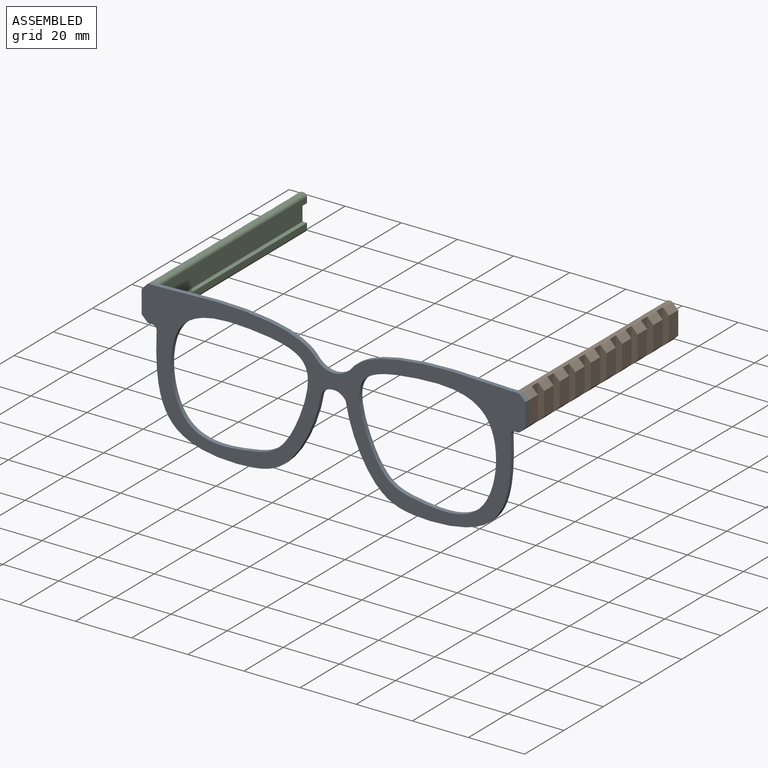
[diagram: assembled view]
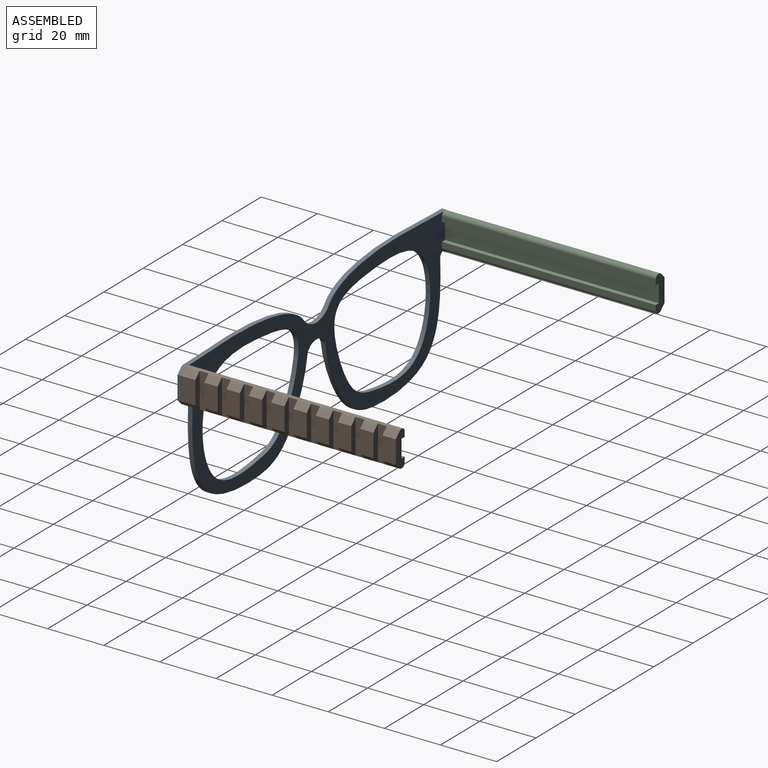
[diagram: assembled view, second angle]
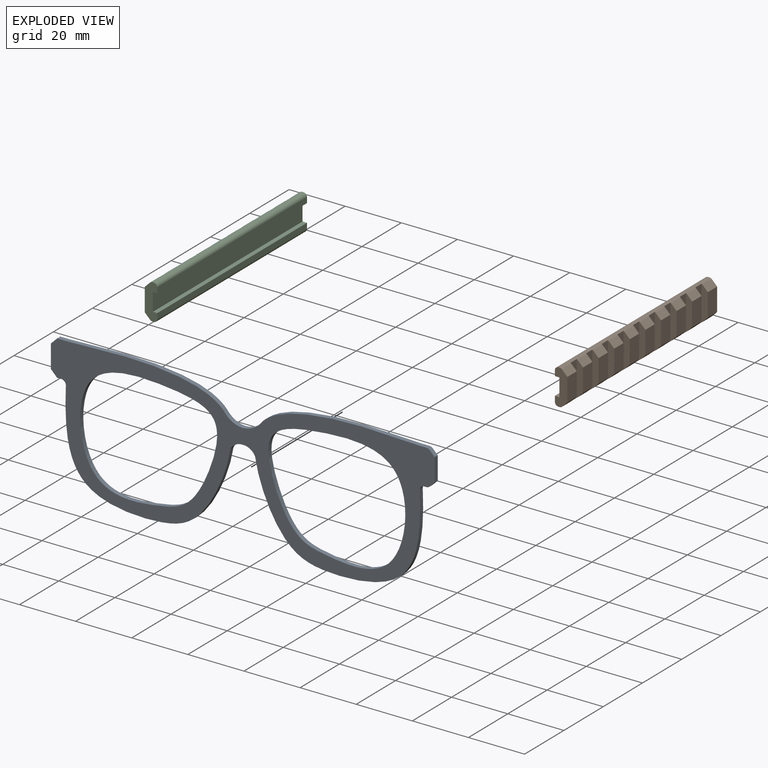
[diagram: exploded view]
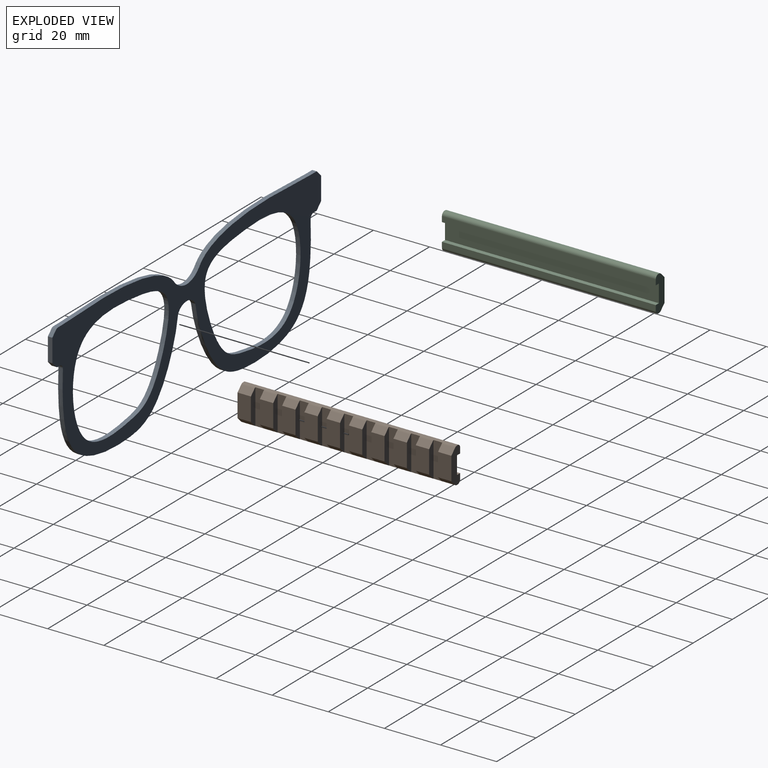
[diagram: exploded view, second angle]
ASSEMBLY  parts=3 mates=2
PART A: 26 faces, bbox 136.8x1.6x51.7 mm
  f0: extruded ~56.61x8.63mm, area 93.1mm2, adj f1,f19,f22,f23
  f1: cylinder r=8.41mm len=6.35mm, axis (0,1,0), area 11.6mm2, adj f0,f2,f22,f23
  f2: cylinder r=8.41mm len=6.35mm, axis (0,1,0), area 11.6mm2, adj f1,f3,f22,f23
  f3: extruded ~56.61x8.63mm, area 93.1mm2, adj f2,f4,f22,f23
  f4: plane 3.18x1.59mm, normal (0,0,1), area 5mm2, adj f3,f5,f22,f23
  f5: plane 2.25x2.25mm, normal (-0.71,0,0.71), area 5mm2, adj f4,f6,f22,f23
  f6: plane 8.21x1.59mm, normal (-1,0,0), area 13mm2, adj f5,f7,f22,f23
  f7: plane 2.25x2.25mm, normal (-0.71,0,-0.71), area 5mm2, adj f6,f8,f22,f23
  f8: plane 1.59x1.51mm, normal (0,0,-1), area 2.4mm2, adj f7,f9,f22,f23
  f9: cylinder r=1.59mm len=1.66mm, axis (0,1,0), area 4.1mm2, adj f8,f10,f22,f23
  f10: extruded ~58.79x35.21mm, area 161.5mm2, adj f9,f11,f22,f23
  f11: cylinder r=4.76mm len=4.38mm, axis (0,1,0), area 8.5mm2, adj f10,f12,f22,f23
  f12: cylinder r=4.76mm len=4.38mm, axis (0,1,0), area 8.5mm2, adj f11,f13,f22,f23
  f13: extruded ~58.79x35.21mm, area 161.5mm2, adj f12,f14,f22,f23
  f14: cylinder r=1.59mm len=1.66mm, axis (0,1,0), area 4.1mm2, adj f13,f15,f22,f23
  f15: plane 1.59x0.85mm, normal (0,0,-1), area 1.4mm2, adj f14,f22,f23,f24
  f16: plane 1.78x1.78mm, normal (0.71,0,-0.71), area 4mm2, adj f17,f22,f23,f24
  f17: plane 8.21x1.59mm, normal (1,0,0), area 13mm2, adj f16,f18,f22,f23
  f18: plane 1.78x1.78mm, normal (0.71,0,0.71), area 4mm2, adj f17,f22,f23,f25
  f19: plane 2.52x1.59mm, normal (0,0,1), area 4mm2, adj f0,f22,f23,f25
  f20: extruded ~48.77x40.48mm, area 232mm2, adj f22,f23
  f21: extruded ~48.77x40.48mm, area 232mm2, adj f22,f23
  f22: plane 136.76x51.71mm, normal (0,-1,0), area 1998.3mm2, adj f0,f1,f2,f3,f4,f5,f6,f7
  f23: plane 136.76x51.71mm, normal (0,1,0), area 1998.3mm2, adj f0,f1,f2,f3,f4,f5,f6,f7
  f24: cylinder r=1.59mm len=1.59mm, axis (0,1,0), area 2mm2, adj f15,f16,f22,f23
  f25: cylinder r=1.59mm len=1.59mm, axis (0,1,0), area 2mm2, adj f18,f19,f22,f23
PART B: 70 faces, bbox 4.5x76.2x12.7 mm
  f0: plane 4.76x1.87mm, normal (0.71,0,0.71), area 12.6mm2, adj f26,f29,f39,f69
  f1: plane 4.76x1.87mm, normal (0.71,0,0.71), area 12.6mm2, adj f25,f40,f42,f69
  f2: plane 4.76x1.87mm, normal (0.71,0,0.71), area 12.6mm2, adj f24,f43,f45,f69
  f3: plane 4.76x1.87mm, normal (0.71,0,0.71), area 12.6mm2, adj f23,f46,f48,f69
  f4: plane 4.76x1.87mm, normal (0.71,0,0.71), area 12.6mm2, adj f22,f49,f51,f69
  f5: plane 4.76x1.87mm, normal (0.71,0,0.71), area 12.6mm2, adj f21,f52,f54,f69
  f6: plane 4.76x1.87mm, normal (0.71,0,0.71), area 12.6mm2, adj f20,f55,f57,f69
  f7: plane 4.76x1.87mm, normal (0.71,0,0.71), area 12.6mm2, adj f19,f58,f60,f69
  f8: plane 4.76x1.87mm, normal (0.71,0,0.71), area 12.6mm2, adj f18,f61,f63,f69
  f9: plane 4.76x1.87mm, normal (0.71,0,-0.71), area 12.6mm2, adj f30,f32,f64,f68
  f10: plane 4.76x1.87mm, normal (0.71,0,-0.71), area 12.6mm2, adj f18,f61,f63,f68
  f11: plane 4.76x1.87mm, normal (0.71,0,-0.71), area 12.6mm2, adj f19,f58,f60,f68
  f12: plane 4.76x1.87mm, normal (0.71,0,-0.71), area 12.6mm2, adj f20,f55,f57,f68
  f13: plane 4.76x1.87mm, normal (0.71,0,-0.71), area 12.6mm2, adj f21,f52,f54,f68
  f14: plane 4.76x1.87mm, normal (0.71,0,-0.71), area 12.6mm2, adj f22,f49,f51,f68
  f15: plane 4.76x1.87mm, normal (0.71,0,-0.71), area 12.6mm2, adj f23,f46,f48,f68
  f16: plane 4.76x1.87mm, normal (0.71,0,-0.71), area 12.6mm2, adj f24,f43,f45,f68
  f17: plane 4.76x1.87mm, normal (0.71,0,-0.71), area 12.6mm2, adj f25,f40,f42,f68
  f18: plane 8.21x4.76mm, normal (1,0,0), area 39.1mm2, adj f8,f10,f61,f63
  f19: plane 8.21x4.76mm, normal (1,0,0), area 39.1mm2, adj f7,f11,f58,f60
  f20: plane 8.21x4.76mm, normal (1,0,0), area 39.1mm2, adj f6,f12,f55,f57
  f21: plane 8.21x4.76mm, normal (1,0,0), area 39.1mm2, adj f5,f13,f52,f54
  f22: plane 8.21x4.76mm, normal (1,0,0), area 39.1mm2, adj f4,f14,f49,f51
  f23: plane 8.21x4.76mm, normal (1,0,0), area 39.1mm2, adj f3,f15,f46,f48
  f24: plane 8.21x4.76mm, normal (1,0,0), area 39.1mm2, adj f2,f16,f43,f45
  f25: plane 8.21x4.76mm, normal (1,0,0), area 39.1mm2, adj f1,f17,f40,f42
  f26: plane 8.21x4.76mm, normal (1,0,0), area 39.1mm2, adj f0,f27,f29,f39
  f27: plane 4.76x1.87mm, normal (0.71,0,-0.71), area 12.6mm2, adj f26,f29,f39,f68
  f28: plane 4.76x1.87mm, normal (0.71,0,0.71), area 12.6mm2, adj f30,f32,f64,f69
  f29: plane 12.7x4.47mm, normal (0,1,0), area 40.9mm2, adj f0,f26,f27,f31,f33,f34,f35,f36
  f30: plane 12.7x4.47mm, normal (0,-1,0), area 40.9mm2, adj f9,f28,f31,f32,f33,f34,f35,f36
  f31: plane 76.2x0.43mm, normal (0,0,-1), area 32.5mm2, adj f29,f30,f67,f68
  f32: plane 8.21x4.76mm, normal (1,0,0), area 39.1mm2, adj f9,f28,f30,f64
  f33: plane 76.2x0.43mm, normal (0,0,1), area 32.5mm2, adj f29,f30,f66,f69
  f34: plane 76.2x1.91mm, normal (-1,0,0), area 145.2mm2, adj f29,f30,f35,f67
  f35: plane 76.2x1.59mm, normal (0,0,1), area 121mm2, adj f29,f30,f34,f36
  f36: plane 76.2x6.35mm, normal (-1,0,0), area 483.9mm2, adj f29,f30,f35,f37
  f37: plane 76.2x1.59mm, normal (0,0,-1), area 121mm2, adj f29,f30,f36,f38
  f38: plane 76.2x1.91mm, normal (-1,0,0), area 145.2mm2, adj f29,f30,f37,f66
  f39: plane 12.46x2.24mm, normal (0,-1,0), area 23.3mm2, adj f0,f26,f27,f41,f68,f69
  f40: plane 12.46x2.24mm, normal (0,1,0), area 23.3mm2, adj f1,f17,f25,f41,f68,f69
  f41: plane 12.46x3.18mm, normal (1,0,0), area 39.6mm2, adj f39,f40,f68,f69
  f42: plane 12.46x2.24mm, normal (0,-1,0), area 23.3mm2, adj f1,f17,f25,f44,f68,f69
  f43: plane 12.46x2.24mm, normal (0,1,0), area 23.3mm2, adj f2,f16,f24,f44,f68,f69
  f44: plane 12.46x3.18mm, normal (1,0,0), area 39.6mm2, adj f42,f43,f68,f69
  f45: plane 12.46x2.24mm, normal (0,-1,0), area 23.3mm2, adj f2,f16,f24,f47,f68,f69
  f46: plane 12.46x2.24mm, normal (0,1,0), area 23.3mm2, adj f3,f15,f23,f47,f68,f69
  f47: plane 12.46x3.18mm, normal (1,0,0), area 39.6mm2, adj f45,f46,f68,f69
  f48: plane 12.46x2.24mm, normal (0,-1,0), area 23.3mm2, adj f3,f15,f23,f50,f68,f69
  f49: plane 12.46x2.24mm, normal (0,1,0), area 23.3mm2, adj f4,f14,f22,f50,f68,f69
  f50: plane 12.46x3.18mm, normal (1,0,0), area 39.6mm2, adj f48,f49,f68,f69
  f51: plane 12.46x2.24mm, normal (0,-1,0), area 23.3mm2, adj f4,f14,f22,f53,f68,f69
  f52: plane 12.46x2.24mm, normal (0,1,0), area 23.3mm2, adj f5,f13,f21,f53,f68,f69
  f53: plane 12.46x3.18mm, normal (1,0,0), area 39.6mm2, adj f51,f52,f68,f69
  f54: plane 12.46x2.24mm, normal (0,-1,0), area 23.3mm2, adj f5,f13,f21,f56,f68,f69
  f55: plane 12.46x2.24mm, normal (0,1,0), area 23.3mm2, adj f6,f12,f20,f56,f68,f69
  f56: plane 12.46x3.18mm, normal (1,0,0), area 39.6mm2, adj f54,f55,f68,f69
  f57: plane 12.46x2.24mm, normal (0,-1,0), area 23.3mm2, adj f6,f12,f20,f59,f68,f69
  f58: plane 12.46x2.24mm, normal (0,1,0), area 23.3mm2, adj f7,f11,f19,f59,f68,f69
  f59: plane 12.46x3.18mm, normal (1,0,0), area 39.6mm2, adj f57,f58,f68,f69
  f60: plane 12.46x2.24mm, normal (0,-1,0), area 23.3mm2, adj f7,f11,f19,f62,f68,f69
  f61: plane 12.46x2.24mm, normal (0,1,0), area 23.3mm2, adj f8,f10,f18,f62,f68,f69
  f62: plane 12.46x3.18mm, normal (1,0,0), area 39.6mm2, adj f60,f61,f68,f69
  f63: plane 12.46x2.24mm, normal (0,-1,0), area 23.3mm2, adj f8,f10,f18,f65,f68,f69
  f64: plane 12.46x2.24mm, normal (0,1,0), area 23.3mm2, adj f9,f28,f32,f65,f68,f69
  f65: plane 12.46x3.18mm, normal (1,0,0), area 39.6mm2, adj f63,f64,f68,f69
  f66: cylinder r=1.27mm len=76.2mm, axis (0,1,0), area 152mm2, adj f29,f30,f33,f38
  f67: cylinder r=1.27mm len=76.2mm, axis (0,-1,0), area 152mm2, adj f29,f30,f31,f34
  f68: cylinder r=1.27mm len=76.2mm, axis (0,-1,0), area 63.3mm2, adj f9,f10,f11,f12,f13,f14,f15,f16
  f69: cylinder r=1.27mm len=76.2mm, axis (0,-1,0), area 63.3mm2, adj f0,f1,f2,f3,f4,f5,f6,f7
PART C: same geometry as B
PLACE A t=(-38.26,-26.69,9.76)mm
PLACE B t=(-1.76,-26.69,22.85)mm
PLACE C rot(axis=(0,1,0),180deg) t=(-130.86,-26.69,45.71)mm
MATE fastened C.f30 <-> A.f23  axis (0,-1,0) through (-134.69,-26.69,34.28)mm
MATE fastened B.f30 <-> A.f23  axis (0,-1,0) through (2.07,-26.69,34.28)mm
